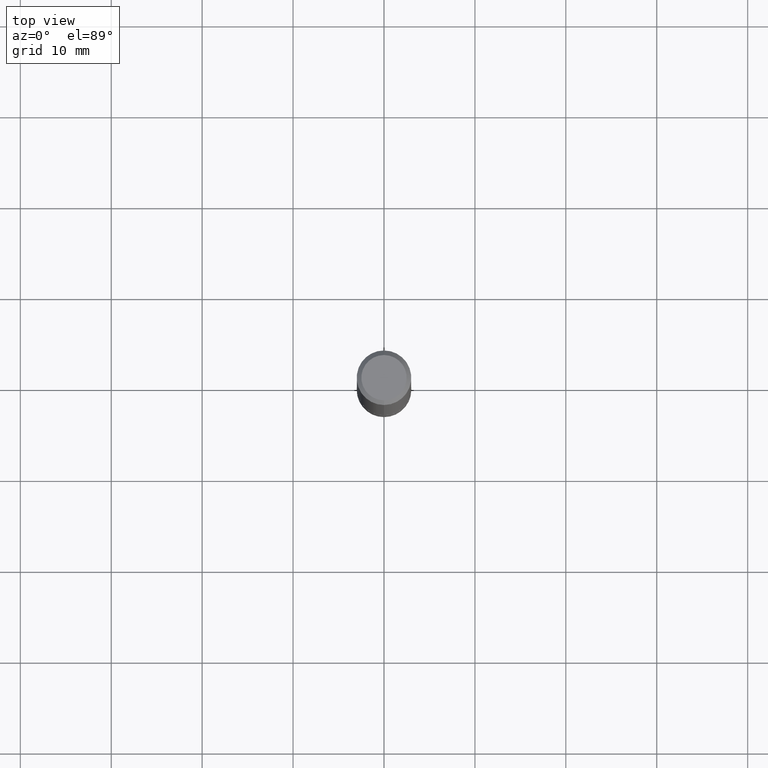
[diagram: clean part render]
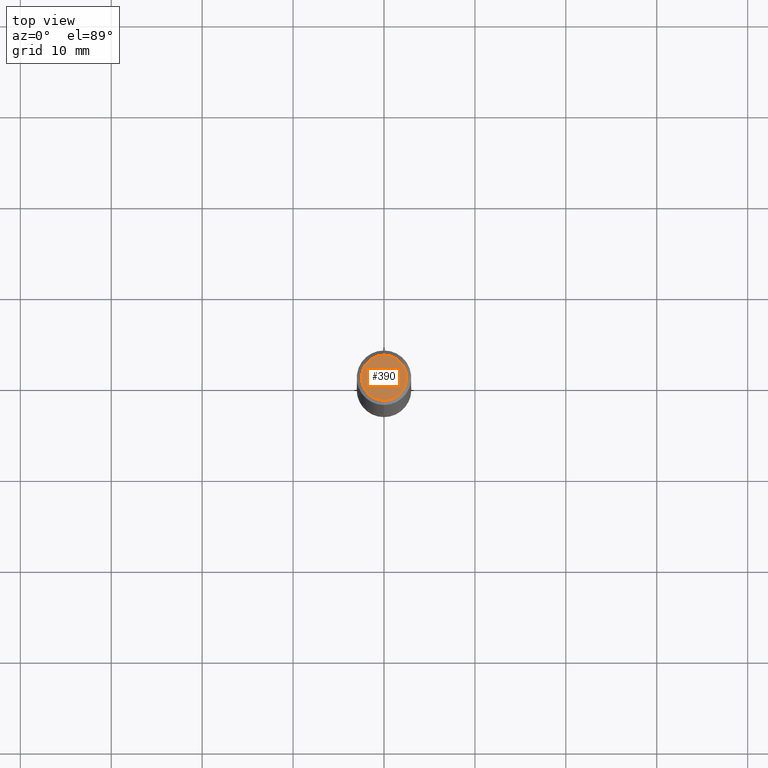
[diagram: same view with one face highlighted and labeled with its STEP entity id]
A machine part, top view. The second image highlights one B-rep face of the part: STEP entity #390.
In plain terms, the highlighted planar face has unit normal (0, -0, -1).
Its self-contained STEP definition (entity closure, byte-faithful):
#12 = FACE_OUTER_BOUND ( 'NONE', #106, .T. ) ;
#17 = VERTEX_POINT ( 'NONE', #207 ) ;
#71 = VERTEX_POINT ( 'NONE', #205 ) ;
#98 = ORIENTED_EDGE ( 'NONE', *, *, #366, .T. ) ;
#105 = DIRECTION ( 'NONE',  ( -6.982962677686265922E-15, -1.000000000000000000, 3.483618712357719301E-15 ) ) ;
#106 = EDGE_LOOP ( 'NONE', ( #98, #324 ) ) ;
#122 = AXIS2_PLACEMENT_3D ( 'NONE', #245, #201, #278 ) ;
#186 = AXIS2_PLACEMENT_3D ( 'NONE', #276, #397, #105 ) ;
#201 = DIRECTION ( 'NONE',  ( -2.450959248914768678E-29, 3.483618712357719301E-15, 1.000000000000000000 ) ) ;
#204 = AXIS2_PLACEMENT_3D ( 'NONE', #394, #365, #304 ) ;
#205 = CARTESIAN_POINT ( 'NONE',  ( 7.548582654578851616E-16, 0.09809999999999984011, -1.973848946770980761E-16 ) ) ;
#207 = CARTESIAN_POINT ( 'NONE',  ( -7.416198335591017148E-16, -0.09809999999999984011, 4.861010966874853470E-16 ) ) ;
#245 = CARTESIAN_POINT ( 'NONE',  ( -3.538158228144516706E-45, 5.028885819421182056E-31, 1.443581010051936478E-16 ) ) ;
#276 = CARTESIAN_POINT ( 'NONE',  ( -3.538158228144516706E-45, 5.028885819421182056E-31, 1.443581010051936478E-16 ) ) ;
#278 = DIRECTION ( 'NONE',  ( -6.982962677686265922E-15, -1.000000000000000000, 3.483618712357719301E-15 ) ) ;
#294 = CIRCLE ( 'NONE', #122, 0.09809999999999984011 ) ;
#304 = DIRECTION ( 'NONE',  ( 6.982962677686265922E-15, 1.000000000000000000, -3.483618712357719301E-15 ) ) ;
#324 = ORIENTED_EDGE ( 'NONE', *, *, #341, .T. ) ;
#341 = EDGE_CURVE ( 'NONE', #17, #71, #364, .T. ) ;
#364 = CIRCLE ( 'NONE', #186, 0.09809999999999984011 ) ;
#365 = DIRECTION ( 'NONE',  ( 2.450959248914768117E-29, -3.483618712357719301E-15, -1.000000000000000000 ) ) ;
#366 = EDGE_CURVE ( 'NONE', #71, #17, #294, .T. ) ;
#388 = PLANE ( 'NONE',  #204 ) ;
#390 = ADVANCED_FACE ( 'NONE', ( #12 ), #388, .F. ) ;
#394 = CARTESIAN_POINT ( 'NONE',  ( 6.850286386810215676E-16, 0.09809999999999984011, -2.695639451796948383E-16 ) ) ;
#397 = DIRECTION ( 'NONE',  ( -2.450959248914768678E-29, 3.483618712357719301E-15, 1.000000000000000000 ) ) ;